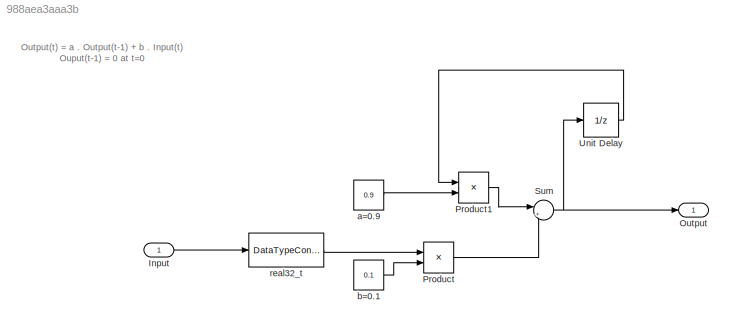
MODEL slx_988aea3aaa3b
KIND model
BLOCK [Inport] Input
  IconDisplay = Port number
  Interpolate = off
  OutDataTypeStr = int32
  PortDimensions = 1
  SampleTime = 0.001
  SignalType = real
  VarSizeSig = No
BLOCK [Outport] Output
  IconDisplay = Port number
  OutDataTypeStr = single
  VarSizeSig = No
BLOCK [Product] Product
  InputSameDT = off
  Ports = [2, 1]
  SaturateOnIntegerOverflow = off
BLOCK [Product] Product1
  InputSameDT = off
  Ports = [2, 1]
  SaturateOnIntegerOverflow = off
BLOCK [Sum] Sum
  AccumDataTypeStr = Inherit: Same as first input
  IconShape = round
  InputSameDT = off
  Inputs = |++
  Ports = [2, 1]
  SaturateOnIntegerOverflow = off
BLOCK [UnitDelay] Unit Delay
  InputProcessing = Elements as channels (sample based)
  SampleTime = -1
BLOCK [Constant] a=0.9
  OutDataTypeStr = single
  Value = 0.9
  VectorParams1D = off
BLOCK [Constant] b=0.1
  LockScale = on
  OutDataTypeStr = single
  Value = 0.1
BLOCK [DataTypeConversion] real32_t
  OutDataTypeStr = single
  RndMeth = Floor
  SaturateOnIntegerOverflow = off
ANNOTATION (root): Output(t) = a . Output(t-1) + b . Input(t) Ouput(t-1) = 0 at t=0
LINE Input:1 -> real32_t:1
LINE Product1:1 -> Sum:1
LINE Product:1 -> Sum:2
NET Sum:1 -> Output:1, Unit Delay:1
LINE Unit Delay:1 -> Product1:1
LINE a=0.9:1 -> Product1:2
LINE b=0.1:1 -> Product:2
LINE real32_t:1 -> Product:1
note: NET lines group one-source signal fan-out (src -> all destinations, sorted); 1:1 wires keep LINE
